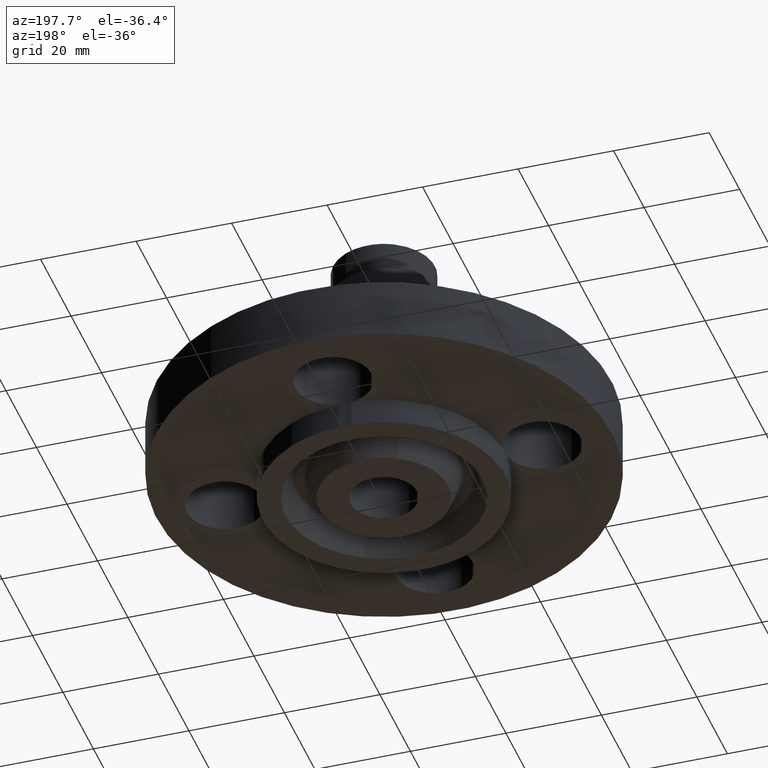
[diagram: clean part render]
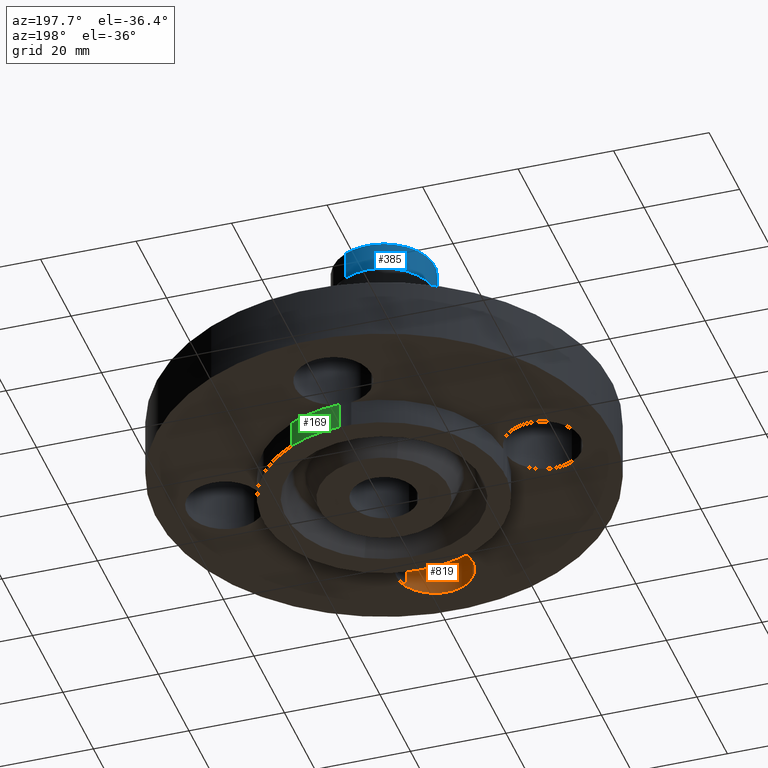
[diagram: same view with three faces highlighted in distinct colors, each labeled with its STEP entity id]
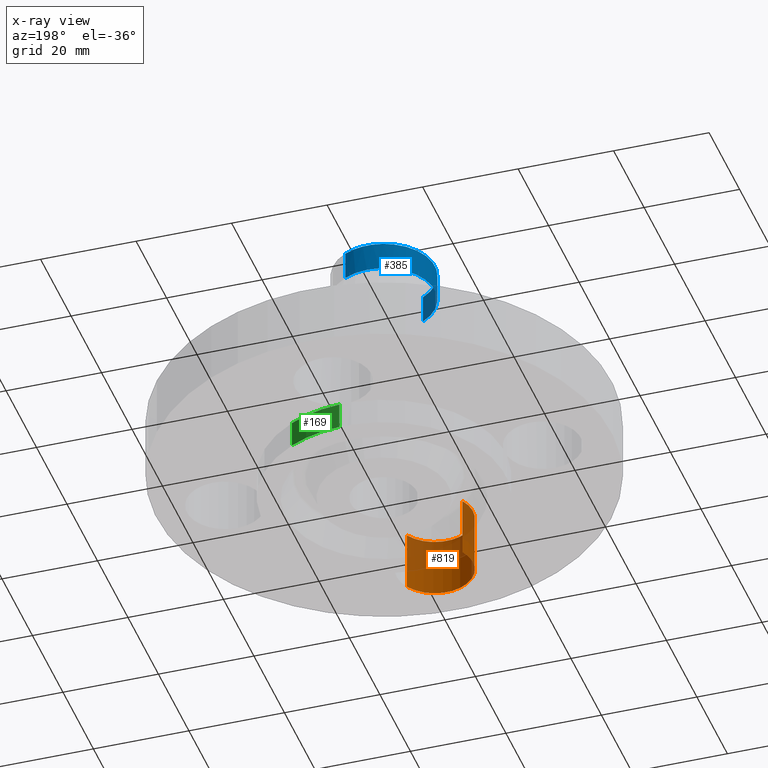
[diagram: x-ray of the same camera — body ghosted, the three highlighted faces saturated]
A machine part, auxiliary view with three faces highlighted in distinct colors.
The next image is the same camera in x-ray (body ghosted, the three faces saturated) — at least one of them is partly hidden behind the body in this view.
Their STEP definitions:

[orange] entity #819 — the highlighted cylindrical surface (partial cylindrical patch) has radius 8.001 mm, axis along (-0, 0, -1).
#706=AXIS2_PLACEMENT_3D('Circle Axis2P3D',#704,#705,$) ;
#792=AXIS2_PLACEMENT_3D('Cylinder Axis2P3D',#789,#790,#791) ;
#810=AXIS2_PLACEMENT_3D('Circle Axis2P3D',#808,#809,$) ;
#701=CARTESIAN_POINT('Vertex',(-0.276438506997,-1.15898095534,0.)) ;
#704=CARTESIAN_POINT('Axis2P3D Location',(0.,-1.31000000001,0.)) ;
#708=CARTESIAN_POINT('Vertex',(0.276438506997,-1.46101904467,0.)) ;
#789=CARTESIAN_POINT('Axis2P3D Location',(1.60428730689E-016,-1.31000000001,0.496062992128)) ;
#794=CARTESIAN_POINT('Line Origine',(0.276438506997,-1.46101904467,0.140500000001)) ;
#798=CARTESIAN_POINT('Vertex',(0.276438506997,-1.46101904467,0.500000000002)) ;
#801=CARTESIAN_POINT('Line Origine',(-0.276438506997,-1.15898095534,0.140500000001)) ;
#805=CARTESIAN_POINT('Vertex',(-0.276438506997,-1.15898095534,0.500000000002)) ;
#808=CARTESIAN_POINT('Axis2P3D Location',(1.60428730689E-016,-1.31000000001,0.500000000002)) ;
#705=DIRECTION('Axis2P3D Direction',(0.,0.,-0.0393700787402)) ;
#790=DIRECTION('Axis2P3D Direction',(-0.,0.,-0.0393700787402)) ;
#791=DIRECTION('Axis2P3D XDirection',(-0.0345504945626,0.0188750212049,0.)) ;
#795=DIRECTION('Vector Direction',(0.,0.,-0.0393700787402)) ;
#802=DIRECTION('Vector Direction',(0.,0.,-0.0393700787402)) ;
#809=DIRECTION('Axis2P3D Direction',(-0.,0.,-0.0393700787402)) ;
#796=VECTOR('Line Direction',#795,0.0393700787402) ;
#803=VECTOR('Line Direction',#802,0.0393700787402) ;
#814=ORIENTED_EDGE('',*,*,#800,.F.) ;
#815=ORIENTED_EDGE('',*,*,#710,.T.) ;
#816=ORIENTED_EDGE('',*,*,#807,.T.) ;
#817=ORIENTED_EDGE('',*,*,#812,.F.) ;
#819=ADVANCED_FACE('PartBody',(#818),#793,.F.) ;
#707=CIRCLE('generated circle',#706,0.315000000001) ;
#811=CIRCLE('generated circle',#810,0.315000000001) ;
#793=CYLINDRICAL_SURFACE('generated cylinder',#792,0.315000000001) ;
#710=EDGE_CURVE('',#709,#702,#707,.T.) ;
#800=EDGE_CURVE('',#709,#799,#797,.F.) ;
#807=EDGE_CURVE('',#702,#806,#804,.F.) ;
#812=EDGE_CURVE('',#799,#806,#811,.T.) ;
#813=EDGE_LOOP('',(#814,#815,#816,#817)) ;
#818=FACE_OUTER_BOUND('',#813,.T.) ;
#797=LINE('Line',#794,#796) ;
#804=LINE('Line',#801,#803) ;
#702=VERTEX_POINT('',#701) ;
#709=VERTEX_POINT('',#708) ;
#799=VERTEX_POINT('',#798) ;
#806=VERTEX_POINT('',#805) ;

[blue] entity #385 — the highlighted cylindrical surface (partial cylindrical patch) has radius 10.668 mm, axis along (0, 0, -1).
#317=AXIS2_PLACEMENT_3D('Circle Axis2P3D',#315,#316,$) ;
#330=AXIS2_PLACEMENT_3D('Cylinder Axis2P3D',#327,#328,#329) ;
#368=AXIS2_PLACEMENT_3D('Circle Axis2P3D',#366,#367,$) ;
#375=AXIS2_PLACEMENT_3D('Circle Axis2P3D',#373,#374,$) ;
#293=CARTESIAN_POINT('Vertex',(0.201358726215,0.368584675995,1.71140190821)) ;
#300=CARTESIAN_POINT('Vertex',(-0.201358726215,-0.368584675995,1.71140190821)) ;
#315=CARTESIAN_POINT('Axis2P3D Location',(0.,0.,1.71140190821)) ;
#327=CARTESIAN_POINT('Axis2P3D Location',(0.,0.,0.890500000004)) ;
#332=CARTESIAN_POINT('Line Origine',(-0.201358726215,-0.368584675995,1.82951214443)) ;
#336=CARTESIAN_POINT('Vertex',(-0.201358726215,-0.368584675995,1.94762238065)) ;
#339=CARTESIAN_POINT('Line Origine',(0.201358726215,0.368584675995,1.82951214443)) ;
#343=CARTESIAN_POINT('Vertex',(0.201358726215,0.368584675995,1.94762238065)) ;
#366=CARTESIAN_POINT('Axis2P3D Location',(0.,0.,1.94762238065)) ;
#370=CARTESIAN_POINT('Vertex',(-0.201358726215,0.368584675995,1.94762238065)) ;
#373=CARTESIAN_POINT('Axis2P3D Location',(0.,0.,1.94762238065)) ;
#316=DIRECTION('Axis2P3D Direction',(0.,0.,-0.0393700787402)) ;
#328=DIRECTION('Axis2P3D Direction',(0.,0.,-0.0393700787402)) ;
#329=DIRECTION('Axis2P3D XDirection',(-0.0188750212049,-0.0345504945626,0.)) ;
#333=DIRECTION('Vector Direction',(0.,0.,-0.0393700787402)) ;
#340=DIRECTION('Vector Direction',(0.,0.,-0.0393700787402)) ;
#367=DIRECTION('Axis2P3D Direction',(0.,0.,-0.0393700787402)) ;
#374=DIRECTION('Axis2P3D Direction',(0.,0.,-0.0393700787402)) ;
#334=VECTOR('Line Direction',#333,0.0393700787402) ;
#341=VECTOR('Line Direction',#340,0.0393700787402) ;
#379=ORIENTED_EDGE('',*,*,#345,.F.) ;
#380=ORIENTED_EDGE('',*,*,#319,.F.) ;
#381=ORIENTED_EDGE('',*,*,#338,.T.) ;
#382=ORIENTED_EDGE('',*,*,#372,.F.) ;
#383=ORIENTED_EDGE('',*,*,#377,.T.) ;
#385=ADVANCED_FACE('PartBody',(#384),#331,.T.) ;
#318=CIRCLE('generated circle',#317,0.420000000002) ;
#369=CIRCLE('generated circle',#368,0.420000000002) ;
#376=CIRCLE('generated circle',#375,0.420000000002) ;
#331=CYLINDRICAL_SURFACE('generated cylinder',#330,0.420000000002) ;
#319=EDGE_CURVE('',#301,#294,#318,.T.) ;
#338=EDGE_CURVE('',#301,#337,#335,.F.) ;
#345=EDGE_CURVE('',#294,#344,#342,.F.) ;
#372=EDGE_CURVE('',#371,#337,#369,.F.) ;
#377=EDGE_CURVE('',#371,#344,#376,.T.) ;
#378=EDGE_LOOP('',(#379,#380,#381,#382,#383)) ;
#384=FACE_OUTER_BOUND('',#378,.T.) ;
#335=LINE('Line',#332,#334) ;
#342=LINE('Line',#339,#341) ;
#294=VERTEX_POINT('',#293) ;
#301=VERTEX_POINT('',#300) ;
#337=VERTEX_POINT('',#336) ;
#344=VERTEX_POINT('',#343) ;
#371=VERTEX_POINT('',#370) ;

[green] entity #169 — the highlighted cylindrical surface (partial cylindrical patch) has radius 25.4 mm, axis along (0, 0, -1).
#142=AXIS2_PLACEMENT_3D('Cylinder Axis2P3D',#139,#140,#141) ;
#146=AXIS2_PLACEMENT_3D('Circle Axis2P3D',#144,#145,$) ;
#160=AXIS2_PLACEMENT_3D('Circle Axis2P3D',#158,#159,$) ;
#87=CARTESIAN_POINT('Vertex',(0.0488269754871,0.998807251912,0.)) ;
#90=CARTESIAN_POINT('Line Origine',(0.0488269754871,0.998807251912,0.140500000001)) ;
#94=CARTESIAN_POINT('Vertex',(0.0488269754871,0.998807251912,-0.219000000001)) ;
#139=CARTESIAN_POINT('Axis2P3D Location',(0.,0.,0.890500000004)) ;
#144=CARTESIAN_POINT('Axis2P3D Location',(0.,0.,0.)) ;
#148=CARTESIAN_POINT('Vertex',(0.479425538606,0.877582561894,0.)) ;
#151=CARTESIAN_POINT('Line Origine',(0.479425538606,0.877582561894,-0.1095)) ;
#155=CARTESIAN_POINT('Vertex',(0.479425538606,0.877582561894,-0.219000000001)) ;
#158=CARTESIAN_POINT('Axis2P3D Location',(0.,0.,-0.219000000001)) ;
#91=DIRECTION('Vector Direction',(0.,0.,-0.0393700787402)) ;
#140=DIRECTION('Axis2P3D Direction',(0.,0.,-0.0393700787402)) ;
#141=DIRECTION('Axis2P3D XDirection',(0.0188750212049,0.0345504945626,0.)) ;
#145=DIRECTION('Axis2P3D Direction',(0.,0.,-0.0393700787402)) ;
#152=DIRECTION('Vector Direction',(0.,0.,-0.0393700787402)) ;
#159=DIRECTION('Axis2P3D Direction',(0.,0.,-0.0393700787402)) ;
#92=VECTOR('Line Direction',#91,0.0393700787402) ;
#153=VECTOR('Line Direction',#152,0.0393700787402) ;
#164=ORIENTED_EDGE('',*,*,#150,.T.) ;
#165=ORIENTED_EDGE('',*,*,#157,.F.) ;
#166=ORIENTED_EDGE('',*,*,#162,.F.) ;
#167=ORIENTED_EDGE('',*,*,#96,.F.) ;
#169=ADVANCED_FACE('PartBody',(#168),#143,.T.) ;
#147=CIRCLE('generated circle',#146,1.) ;
#161=CIRCLE('generated circle',#160,1.) ;
#143=CYLINDRICAL_SURFACE('generated cylinder',#142,1.) ;
#96=EDGE_CURVE('',#88,#95,#93,.T.) ;
#150=EDGE_CURVE('',#88,#149,#147,.T.) ;
#157=EDGE_CURVE('',#156,#149,#154,.F.) ;
#162=EDGE_CURVE('',#95,#156,#161,.T.) ;
#163=EDGE_LOOP('',(#164,#165,#166,#167)) ;
#168=FACE_OUTER_BOUND('',#163,.T.) ;
#93=LINE('Line',#90,#92) ;
#154=LINE('Line',#151,#153) ;
#88=VERTEX_POINT('',#87) ;
#95=VERTEX_POINT('',#94) ;
#149=VERTEX_POINT('',#148) ;
#156=VERTEX_POINT('',#155) ;